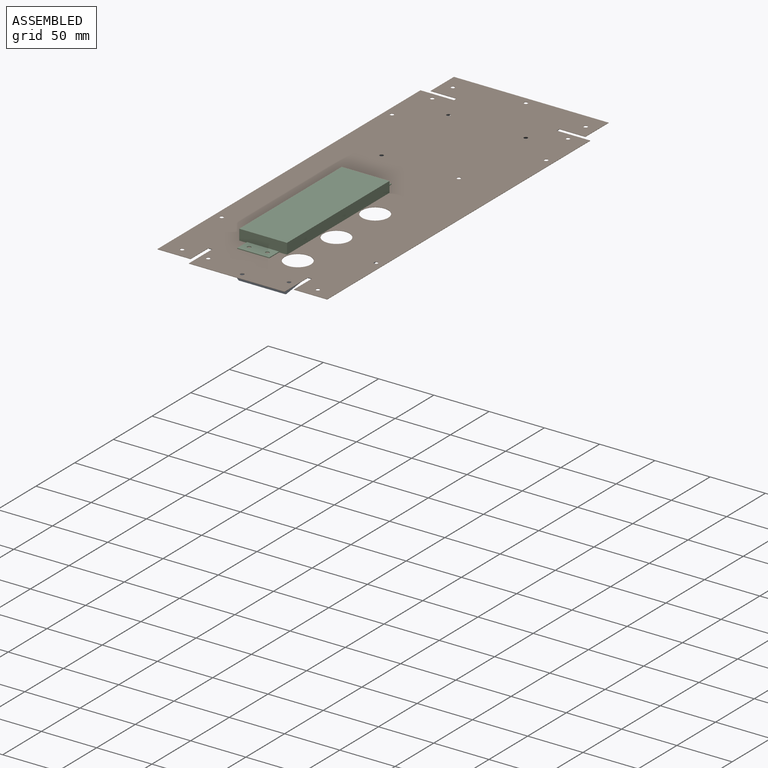
[diagram: assembled view]
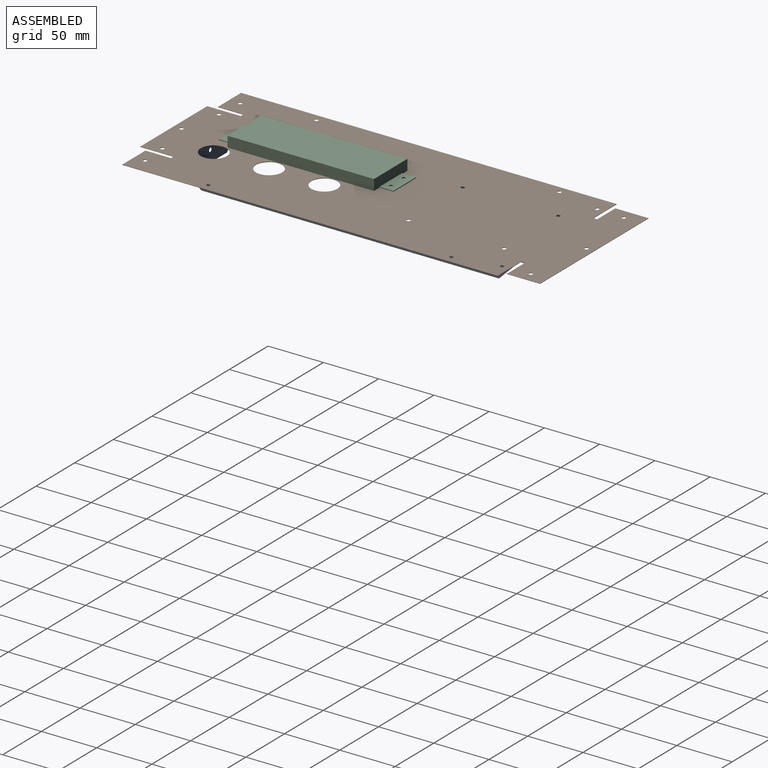
[diagram: assembled view, second angle]
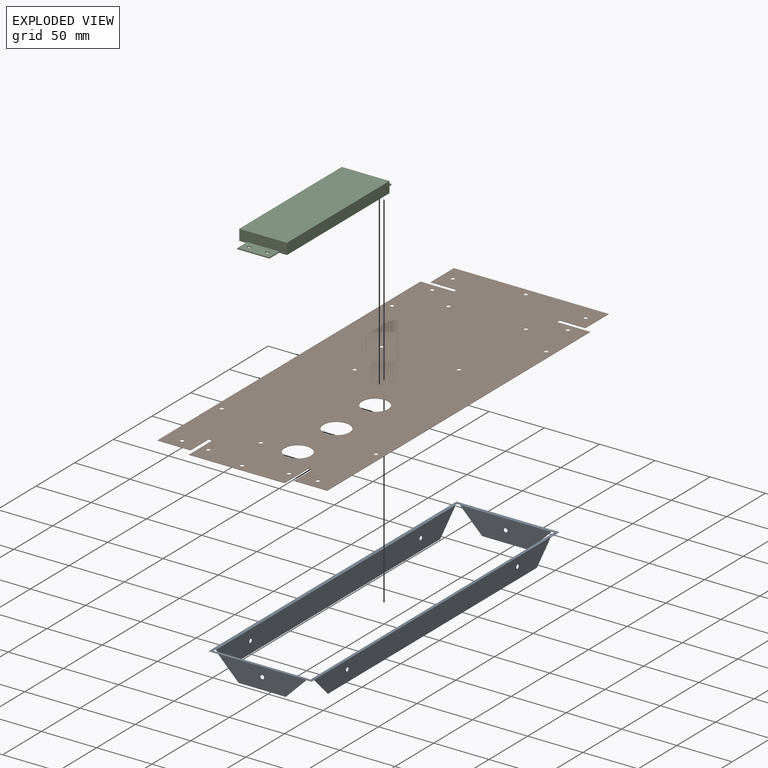
[diagram: exploded view]
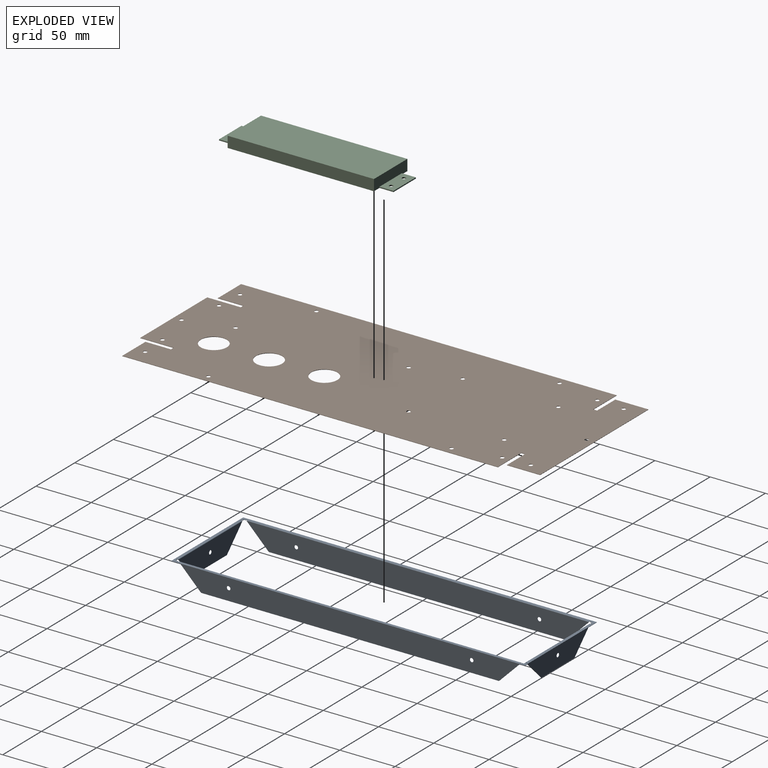
[diagram: exploded view, second angle]
FCSTD DOCUMENT  (FreeCAD 0.22R37100 (Git))
Label: composit_electric_shield
License: All rights reserved
LicenseURL: http://en.wikipedia.org/wiki/All_rights_reserved
objects: Part::FeaturePython×49, Path::FeaturePython×22, App::DocumentObjectGroup×20, Sketcher::SketchObject×7, App::FeaturePython×5, PartDesign::FeaturePython×4, PartDesign::Body×4, Part::Extrusion×4, Part::Mirroring×3, Part::Compound×3, PartDesign::Boolean×3, Part::Cylinder×3, Path::FeatureCompound×3, PartDesign::SubShapeBinder×2, App::Link×2, Part::Feature×2, Measure::MeasureDistance×2, Part::Part2DObjectPython×2, Part::Offset2D×1, Part::Face×1, +3 more types
note: 93 computed .brp shape members not serialized (recipe doc carries the construction recipe); baked Part::Feature solids carry a one-line shape summary decoded from their .brp
EXTERNAL_REF file=UET-VAF-060A67.FCStd obj=Body
EXTERNAL_REF file=../../horec/el/horec_el3/plate_cut2.FCStd obj=Extrude001

FEATURE [Sketcher::SketchObject] Sketch
  FullyConstrained = true
  sketch-geometry (5):
    g0: LineSegment StartX=-46.5 StartY=-160 StartZ=0 EndX=46.5 EndY=-160 EndZ=0
    g1: LineSegment StartX=46.5 StartY=-160 StartZ=0 EndX=46.5 EndY=160 EndZ=0
    g2: LineSegment StartX=46.5 StartY=160 StartZ=0 EndX=-46.5 EndY=160 EndZ=0
    g3: LineSegment StartX=-46.5 StartY=160 StartZ=0 EndX=-46.5 EndY=-160 EndZ=0
    g4: GeomPoint X=0 Y=0 Z=0
  constraints (12):
    c: Coincident(g0,g1)
    c: Coincident(g1,g2)
    c: Coincident(g2,g3)
    c: Coincident(g3,g0)
    c: Horizontal(g0)
    c: Horizontal(g2)
    c: Vertical(g1)
    c: Vertical(g3)
    c: Symmetric(g2,g0,g4)
    c: Coincident(g4,g-1)
    c: DistanceX(g0,g1) = 93  'width'
    c: DistanceY(g0,g1) = 320  'length'
FEATURE [Sketcher::SketchObject] Sketch001
  FullyConstrained = true
  Placement = pos=(0,0,0.4) rot=(0,0,1;0rad)
  expr: Constraints[10] = <<Sketch>>.Constraints.width / 2 + 3.4 mm
  expr: Constraints[11] = <<Sketch>>.Constraints.length / 2 + 0.1 mm
  sketch-geometry (5):
    g0: LineSegment StartX=-49.9 StartY=160.1 StartZ=0 EndX=-49.9 EndY=140.1 EndZ=0
    g1: LineSegment StartX=-49.9 StartY=140.1 StartZ=0 EndX=49.9 EndY=140.1 EndZ=0
    g2: LineSegment StartX=49.9 StartY=140.1 StartZ=0 EndX=49.9 EndY=160.1 EndZ=0
    g3: LineSegment StartX=49.9 StartY=160.1 StartZ=0 EndX=-49.9 EndY=160.1 EndZ=0
    g4: GeomPoint X=0 Y=150.1 Z=0
  constraints (13):
    c: Coincident(g0,g1)
    c: Coincident(g1,g2)
    c: Coincident(g2,g3)
    c: Coincident(g3,g0)
    c: Vertical(g0)
    c: Vertical(g2)
    c: Horizontal(g1)
    c: Horizontal(g3)
    c: Symmetric(g2,g0,g4)
    c: PointOnObject(g4,g-2)
    c: DistanceX(g2) = 49.9
    c: DistanceY(g2) = 160.1
    c: DistanceY(g2,g2) = 20
FEATURE [Sketcher::SketchObject] Sketch002
  FullyConstrained = true
  Placement = pos=(0,0,0.4) rot=(0,0,1;0rad)
  expr: Constraints[3] = <<Sketch>>.Constraints.width / 2 + 0.1 mm
  expr: Constraints[4] = -(<<Sketch>>.Constraints.length / 2 + 3 mm)
  sketch-geometry (2):
    g0: LineSegment StartX=46.6 StartY=-143 StartZ=0 EndX=46.6 EndY=-163 EndZ=0
    g1: LineSegment StartX=46.6 StartY=-163 StartZ=0 EndX=26.6 EndY=-163 EndZ=0
  constraints (7):
    c: Vertical(g0)
    c: Coincident(g0,g1)
    c: Horizontal(g1)
    c: DistanceX(g0) = 46.6
    c: DistanceY(g0) = -163
    c: DistanceX(g1,g1) = 20
    c: DistanceY(g0,g0) = 20
FEATURE [Part::Mirroring] Part__Mirroring  label="Sketch002 (Mirror #1)"
  Base = (0,0,0)
  Normal = (1,0,0)
  Source = -> Sketch002
FEATURE [PartDesign::SubShapeBinder] Binder
  BindCopyOnChange = 0
  BindMode = 0
  ClaimChildren = true
  Context = -> Body [Binder.]
  Fuse = false
  MakeFace = true
  OffsetFill = false
  OffsetIntersection = false
  OffsetJoinType = 0
  OffsetOpenResult = false
  PartialLoad = false
  Relative = false
  Support = -> [Sketch]
  _Version = 2
FEATURE [PartDesign::FeaturePython] BaseBend  # WARN: FeaturePython — macro-defined, semantics opaque (R4)
  BendSide = 0
  BendSketch = -> Binder
  MidPlane = false
  Reverse = false
  Suppressed = false
  length = 100
  radius = 0.1
  thickness = 0.3
FEATURE [PartDesign::FeaturePython] Bend  # WARN: FeaturePython — macro-defined, semantics opaque (R4)
  AutoMiter = false
  BaseFeature = -> BaseBend
  BendType = 0
  LengthList = [30]
  LengthSpec = 0
  ReliefFactor = 0.7
  Suppressed = false
  UseReliefFactor = false
  angle = 90
  baseObject = -> BaseBend [Edge4,Edge7,Edge12,Edge10]
  bendAList = [90]
  extend1 = 0
  extend2 = 0
  gap1 = 0
  gap2 = 0
  invert = false
  kfactor = 0.5
  length = 30
  maxExtendDist = 5
  minGap = 0.2
  minReliefGap = 1
  miterangle1 = 0
  miterangle2 = 0
  offset = 0
  radius = 0.1
  reliefType = 0
  reliefd = 1
  reliefw = 0.8
  sketchflip = false
  sketchinvert = false
  unfold = false
  expr: radius = BaseBend.radius
FEATURE [Part::FeaturePython] BaseBend001  # WARN: FeaturePython — macro-defined, semantics opaque (R4)
  BendSide = 0
  BendSketch = -> Sketch001
  MidPlane = false
  Reverse = false
  length = 30
  radius = 0.1
  thickness = 0.3
  expr: length = <<Bend>>.length
FEATURE [Part::FeaturePython] BaseBend002  # WARN: FeaturePython — macro-defined, semantics opaque (R4)
  BendSide = 1
  BendSketch = -> Sketch002
  MidPlane = false
  Reverse = false
  length = 30
  radius = 0.1
  thickness = 0.3
  expr: length = <<Bend>>.length
FEATURE [Part::FeaturePython] BaseBend003  # WARN: FeaturePython — macro-defined, semantics opaque (R4)
  BendSide = 0
  BendSketch = -> Part__Mirroring
  MidPlane = false
  Reverse = false
  length = 30
  radius = 0.1
  thickness = 0.3
  expr: length = <<Bend>>.length
FEATURE [PartDesign::Body] Body001
  Origin = -> Origin001
FEATURE [Part::Compound] Compound
  Links = -> [BaseBend001,BaseBend002,BaseBend003]
FEATURE [PartDesign::Boolean] Boolean
  BaseFeature = -> Bend
  Group = -> [Compound]
  Refine = true
  Suppressed = false
  Type = 0
  UsePlacement = true
FEATURE [Sketcher::SketchObject] Sketch003
  FullyConstrained = true
  Placement = pos=(46.5,160,0) rot=(0,0,1;0rad)
  expr: .Placement.Base.x = <<Sketch>>.Constraints.width / 2
  expr: .Placement.Base.y = <<Sketch>>.Constraints.length / 2
  sketch-geometry (4):
    g0: LineSegment StartX=0 StartY=0 StartZ=0 EndX=0.5 EndY=0 EndZ=0
    g1: LineSegment StartX=0.5 StartY=0 StartZ=0 EndX=0.5 EndY=-3.2 EndZ=0
    g2: LineSegment StartX=0.5 StartY=-3.2 StartZ=0 EndX=0 EndY=-3.2 EndZ=0
    g3: LineSegment StartX=0 StartY=-3.2 StartZ=0 EndX=0 EndY=0 EndZ=0
  constraints (11):
    c: Coincident(g0,g1)
    c: Coincident(g1,g2)
    c: Coincident(g2,g3)
    c: Coincident(g3,g0)
    c: Horizontal(g0)
    c: Horizontal(g2)
    c: Vertical(g1)
    c: Vertical(g3)
    c: Coincident(g0,g-1)
    c: DistanceY(g3,g3) = 3.2
    c: DistanceX(g0,g0) = 0.5
FEATURE [Sketcher::SketchObject] Sketch004
  FullyConstrained = true
  Placement = pos=(46.5,-160,0) rot=(0,0,1;0rad)
  expr: .Placement.Base.x = <<Sketch>>.Constraints.width / 2
  expr: .Placement.Base.y = -<<Sketch>>.Constraints.length / 2
  sketch-geometry (4):
    g0: LineSegment StartX=0 StartY=0 StartZ=0 EndX=-3.2 EndY=0 EndZ=0
    g1: LineSegment StartX=-3.2 StartY=0 StartZ=0 EndX=-3.2 EndY=-0.5 EndZ=0
    g2: LineSegment StartX=-3.2 StartY=-0.5 StartZ=0 EndX=0 EndY=-0.5 EndZ=0
    g3: LineSegment StartX=0 StartY=-0.5 StartZ=0 EndX=0 EndY=0 EndZ=0
  constraints (11):
    c: Coincident(g0,g1)
    c: Coincident(g1,g2)
    c: Coincident(g2,g3)
    c: Coincident(g3,g0)
    c: Horizontal(g0)
    c: Horizontal(g2)
    c: Vertical(g1)
    c: Vertical(g3)
    c: Coincident(g0,g-1)
    c: DistanceX(g1) = -3.2
    c: DistanceY(g1) = -0.5
FEATURE [Part::Extrusion] Extrude
  Base = -> Sketch003
  Dir = (0,0,1)
  DirMode = 2
  FaceMakerClass = Part::FaceMakerBullseye
  LengthFwd = 40
  LengthRev = 0
  Solid = true
  Symmetric = false
FEATURE [Part::Extrusion] Extrude001
  Base = -> Sketch004
  Dir = (0,0,1)
  DirMode = 2
  FaceMakerClass = Part::FaceMakerBullseye
  LengthFwd = 100
  LengthRev = 0
  Solid = true
  Symmetric = false
FEATURE [Part::Mirroring] Part__Mirroring001  label="Extrude (Mirror #2)"
  Base = (0,0,0)
  Normal = (1,0,0)
  Source = -> Extrude
FEATURE [Part::Mirroring] Part__Mirroring002  label="Extrude001 (Mirror #3)"
  Base = (0,0,0)
  Normal = (1,0,0)
  Source = -> Extrude001
FEATURE [Part::Cylinder] Cylinder
  Angle = 360
  AttacherType = Attacher::AttachEngine3D
  FirstAngle = 0
  Height = 10
  Radius = 1.7
  SecondAngle = 0
FEATURE [Part::FeaturePython] Placment  # WARN: FeaturePython — macro-defined, semantics opaque (R4)
  AttacherType = Attacher::AttachEngine3D
  ExposePlacement = true
  MarkerShape = 1
  MarkerSize = 10
  NumElements = 1
  Placement = pos=(46.5,150,15) rot=(0.57735,0.57735,0.57735;2.0944rad)
  Type = lattice2AttachablePlacement.AttachablePlacement
  isLattice = 1
  expr: .Placement.Base.x = <<Sketch>>.Constraints.width / 2
  expr: .Placement.Base.y = <<Sketch>>.Constraints.length / 2 - 10 mm
FEATURE [Part::FeaturePython] Placment001  # WARN: FeaturePython — macro-defined, semantics opaque (R4)
  AttacherType = Attacher::AttachEngine3D
  ExposePlacement = true
  MarkerShape = 1
  MarkerSize = 10
  NumElements = 1
  Placement = pos=(36.5,-160,15) rot=(1,0,0;1.5708rad)
  Type = lattice2AttachablePlacement.AttachablePlacement
  isLattice = 1
  expr: .Placement.Base.x = <<Sketch>>.Constraints.width / 2 - 10 mm
  expr: .Placement.Base.y = -<<Sketch>>.Constraints.length / 2
FEATURE [Part::FeaturePython] Join  # WARN: FeaturePython — macro-defined, semantics opaque (R4)
  ExposePlacement = false
  Interleave = false
  Links = -> [Placment,Placment001]
  MarkerShape = 1
  MarkerSize = 0
  NumElements = 2
  Type = lattice2JoinArrays.JoinArrays
  isLattice = 1
FEATURE [Part::FeaturePython] Mirror  label="Mirror of Join"  # WARN: FeaturePython — macro-defined, semantics opaque (R4)
  ExposePlacement = false
  FlipX = true
  FlipY = false
  FlipZ = false
  MarkerShape = 1
  MarkerSize = 0
  NumElements = 2
  Object = -> Join
  ObjectTraversal = 0
  Type = lattice2Mirror.LatticeMirror
  isLattice = 1
FEATURE [Part::FeaturePython] Join001  # WARN: FeaturePython — macro-defined, semantics opaque (R4)
  ExposePlacement = false
  Interleave = false
  Links = -> [Join,Mirror]
  MarkerShape = 1
  MarkerSize = 0
  NumElements = 4
  Type = lattice2JoinArrays.JoinArrays
  isLattice = 1
FEATURE [Part::FeaturePython] Populate  label="Populate Join001 with Cylinder"  # WARN: FeaturePython — macro-defined, semantics opaque (R4)
  Copying = 0
  ExposePlacement = false
  MarkerShape = 1
  MarkerSize = 0
  NumElements = 0
  Object = -> Cylinder
  OutputCompounding = 1
  PlacementsTo = -> Join001
  Referencing = 0
  Type = lattice2PopulateCopies.LatticePopulateCopies
  isLattice = 0
FEATURE [Part::Offset2D] Offset2D
  Fill = false
  Intersection = false
  Join = 0
  Mode = 1
  SelfIntersection = false
  Source = -> Sketch
  Value = -2.5
FEATURE [Part::Face] Face
  FaceMakerClass = Part::FaceMakerBullseye
  Sources = -> [Sketch,Offset2D]
FEATURE [PartDesign::SubShapeBinder] Binder001
  BindCopyOnChange = 0
  BindMode = 0
  ClaimChildren = true
  Context = -> Body002 [Binder001.]
  Fuse = false
  MakeFace = true
  OffsetFill = false
  OffsetIntersection = false
  OffsetJoinType = 0
  OffsetOpenResult = false
  PartialLoad = false
  Relative = false
  Support = -> [Face]
  _Version = 2
FEATURE [PartDesign::FeaturePython] BaseBend004  # WARN: FeaturePython — macro-defined, semantics opaque (R4)
  BendSide = 0
  BendSketch = -> Binder001
  MidPlane = false
  Reverse = true
  Suppressed = false
  length = 100
  radius = 0.1
  thickness = 0.3
FEATURE [PartDesign::FeaturePython] Bend001  # WARN: FeaturePython — macro-defined, semantics opaque (R4)
  AutoMiter = false
  BaseFeature = -> BaseBend004
  BendType = 0
  LengthList = [20]
  LengthSpec = 0
  ReliefFactor = 0.7
  Suppressed = false
  UseReliefFactor = false
  angle = 90
  baseObject = -> BaseBend004 [Edge21,Edge23,Edge18,Edge15]
  bendAList = [90]
  extend1 = 0
  extend2 = 0
  gap1 = 2.7
  gap2 = 2.7
  invert = true
  kfactor = 0.5
  length = 20
  maxExtendDist = 5
  minGap = 0.2
  minReliefGap = 1
  miterangle1 = 45
  miterangle2 = 45
  offset = 0
  radius = 0.1
  reliefType = 0
  reliefd = 1
  reliefw = 0.8
  sketchflip = false
  sketchinvert = false
  unfold = false
  expr: gap2 = gap1
  expr: radius = BaseBend004.radius
FEATURE [Part::FeaturePython] PolarArray  # WARN: FeaturePython — macro-defined, semantics opaque (R4)
  Alignment = 0
  AttacherType = Attacher::AttachEngine3D
  CellStart = A1
  Count = 2
  DistributionLaw = 0
  EndInclusive = false
  ExposePlacement = false
  FlipX = false
  FlipZ = false
  GeneratorMode = 0
  MarkerShape = 1
  MarkerSize = 0
  NumElements = 2
  OrientMode = 2
  Placement = pos=(20,-70,0) rot=(0,0,1;1.45749rad)
  Radius = 72.9679
  Reverse = false
  SpanEnd = 360
  SpanStart = 0
  Step = 180
  Type = lattice2PolarArray2.PolarArray
  UseArcRadius = false
  UseArcRange = 0
  VSGVersion = 1
  Values = 0.0 | 180.0
  ValuesSource = 2
  isLattice = 1
  expr: .Placement.Rotation.Angle = atan2(145; 16.5)
  expr: Radius = hypot(16.5; 145) / 2
FEATURE [Part::FeaturePython] Populate001  label="Populate PolarArray with Cylinder"  # WARN: FeaturePython — macro-defined, semantics opaque (R4)
  Copying = 0
  ExposePlacement = false
  MarkerShape = 1
  MarkerSize = 0
  NumElements = 0
  Object = -> Cylinder
  OutputCompounding = 1
  PlacementsTo = -> PolarArray
  Referencing = 0
  Type = lattice2PopulateCopies.LatticePopulateCopies
  isLattice = 0
FEATURE [Part::FeaturePython] LinearArray  # WARN: FeaturePython — macro-defined, semantics opaque (R4)
  Alignment = 0
  CellStart = A1
  Count = 3
  Dir = (1,0,0)
  DirIsDriven = true
  DistributionLaw = 0
  DrivenProperty = 1
  EndInclusive = true
  ExposePlacement = false
  GeneratorMode = 0
  MarkerShape = 1
  MarkerSize = 0
  NumElements = 3
  OrientMode = 1
  Placement = pos=(-20,-140,0) rot=(0,0,1;1.5708rad)
  Point = (0,0,0)
  PointIsDriven = true
  Reverse = false
  SpanEnd = 100
  SpanStart = 0
  Step = 50
  Type = lattice2LinearArray.LinearArray
  VSGVersion = 1
  Values = 0.0 | 50.0 | 100.0
  ValuesSource = 2
  isLattice = 1
FEATURE [Part::Cylinder] Cylinder001
  Angle = 360
  AttacherType = Attacher::AttachEngine3D
  FirstAngle = 0
  Height = 10
  Radius = 11.85
  SecondAngle = 0
FEATURE [Part::FeaturePython] Populate002  label="Populate LinearArray with Cylinder001"  # WARN: FeaturePython — macro-defined, semantics opaque (R4)
  Copying = 0
  ExposePlacement = false
  MarkerShape = 1
  MarkerSize = 0
  NumElements = 0
  Object = -> Cylinder001
  OutputCompounding = 1
  PlacementsTo = -> LinearArray
  Referencing = 0
  Type = lattice2PopulateCopies.LatticePopulateCopies
  isLattice = 0
FEATURE [Part::FeaturePython] LinearArray001  # WARN: FeaturePython — macro-defined, semantics opaque (R4)
  Alignment = 0
  CellStart = A1
  Count = 1
  Dir = (1,0,0)
  DirIsDriven = true
  DistributionLaw = 0
  DrivenProperty = 1
  EndInclusive = true
  ExposePlacement = false
  GeneratorMode = 0
  MarkerShape = 1
  MarkerSize = 10
  NumElements = 1
  OrientMode = 1
  Point = (0,0,0)
  PointIsDriven = true
  Reverse = false
  SpanEnd = 100
  SpanStart = 0
  Step = 100
  Type = lattice2LinearArray.LinearArray
  VSGVersion = 1
  Values = 0.0
  ValuesSource = 2
  isLattice = 1
  expr: .Placement.Base.x = Count == 1 ? 0 : -SpanEnd / 2
FEATURE [Part::FeaturePython] LinearArray002  # WARN: FeaturePython — macro-defined, semantics opaque (R4)
  Alignment = 0
  CellStart = A1
  Count = 2
  Dir = (1,0,0)
  DirIsDriven = true
  DistributionLaw = 0
  DrivenProperty = 1
  EndInclusive = true
  ExposePlacement = false
  GeneratorMode = 0
  MarkerShape = 1
  MarkerSize = 0
  NumElements = 2
  OrientMode = 1
  Placement = pos=(-110,0,0) rot=(0,0,1;0rad)
  Point = (0,0,0)
  PointIsDriven = true
  Reverse = false
  SpanEnd = 220
  SpanStart = 0
  Step = 220
  Type = lattice2LinearArray.LinearArray
  VSGVersion = 1
  Values = 0.0 | 220.0
  ValuesSource = 2
  isLattice = 1
  expr: .Placement.Base.x = Count == 1 ? 0 : -SpanEnd / 2
  expr: SpanEnd = <<Sketch>>.Constraints.length - 100 mm
FEATURE [Part::FeaturePython] Placment002  # WARN: FeaturePython — macro-defined, semantics opaque (R4)
  AttacherType = Attacher::AttachEngine3D
  ExposePlacement = true
  MarkerShape = 1
  MarkerSize = 20
  NumElements = 1
  Placement = pos=(43,0,0) rot=(0.57735,0.57735,0.57735;2.0944rad)
  Type = lattice2AttachablePlacement.AttachablePlacement
  isLattice = 1
  expr: .Placement.Base.x = <<Sketch>>.Constraints.width / 2 - 3.5 mm
FEATURE [Part::FeaturePython] Mirror001  label="Mirror001 of Placment002"  # WARN: FeaturePython — macro-defined, semantics opaque (R4)
  ExposePlacement = false
  FlipX = true
  FlipY = false
  FlipZ = false
  MarkerShape = 1
  MarkerSize = 20
  NumElements = 1
  Object = -> Placment002
  ObjectTraversal = 0
  Type = lattice2Mirror.LatticeMirror
  isLattice = 1
FEATURE [Part::FeaturePython] Join002  # WARN: FeaturePython — macro-defined, semantics opaque (R4)
  ExposePlacement = false
  Interleave = false
  Links = -> [Placment002,Mirror001]
  MarkerShape = 1
  MarkerSize = 0
  NumElements = 2
  Type = lattice2JoinArrays.JoinArrays
  isLattice = 1
FEATURE [Part::FeaturePython] Populate003  label="Populate Join002 with LinearArray002"  # WARN: FeaturePython — macro-defined, semantics opaque (R4)
  Copying = 0
  ExposePlacement = false
  MarkerShape = 1
  MarkerSize = 0
  NumElements = 4
  Object = -> LinearArray002
  OutputCompounding = 0
  PlacementsTo = -> Join002
  Referencing = 0
  Type = lattice2PopulateCopies.LatticePopulateCopies
  isLattice = 1
FEATURE [Part::FeaturePython] Placment003  # WARN: FeaturePython — macro-defined, semantics opaque (R4)
  AttacherType = Attacher::AttachEngine3D
  ExposePlacement = true
  MarkerShape = 1
  MarkerSize = 50
  NumElements = 1
  Placement = pos=(0,156.5,0) rot=(-1,0,0;1.5708rad)
  Type = lattice2AttachablePlacement.AttachablePlacement
  isLattice = 1
  expr: .Placement.Base.y = <<Sketch>>.Constraints.length / 2 - 3.5 mm
FEATURE [Part::FeaturePython] Mirror002  label="Mirror002 of Placment003"  # WARN: FeaturePython — macro-defined, semantics opaque (R4)
  ExposePlacement = false
  FlipX = false
  FlipY = true
  FlipZ = false
  MarkerShape = 1
  MarkerSize = 50
  NumElements = 1
  Object = -> Placment003
  ObjectTraversal = 0
  Type = lattice2Mirror.LatticeMirror
  isLattice = 1
FEATURE [Part::FeaturePython] Join003  # WARN: FeaturePython — macro-defined, semantics opaque (R4)
  ExposePlacement = false
  Interleave = false
  Links = -> [Mirror002,Placment003]
  MarkerShape = 1
  MarkerSize = 0
  NumElements = 2
  Type = lattice2JoinArrays.JoinArrays
  isLattice = 1
FEATURE [Part::FeaturePython] Populate004  label="Populate Join003 with LinearArray001"  # WARN: FeaturePython — macro-defined, semantics opaque (R4)
  Copying = 0
  ExposePlacement = false
  MarkerShape = 1
  MarkerSize = 0
  NumElements = 2
  Object = -> LinearArray001
  OutputCompounding = 0
  PlacementsTo = -> Join003
  Referencing = 0
  Type = lattice2PopulateCopies.LatticePopulateCopies
  isLattice = 1
FEATURE [Part::FeaturePython] Join004  # WARN: FeaturePython — macro-defined, semantics opaque (R4)
  ExposePlacement = false
  Interleave = false
  Links = -> [Populate003,Populate004]
  MarkerShape = 1
  MarkerSize = 0
  NumElements = 6
  Type = lattice2JoinArrays.JoinArrays
  isLattice = 1
FEATURE [Part::FeaturePython] Populate005  label="Populate Join004 with Cylinder"  # WARN: FeaturePython — macro-defined, semantics opaque (R4)
  Copying = 0
  ExposePlacement = false
  MarkerShape = 1
  MarkerSize = 0
  NumElements = 0
  Object = -> Cylinder
  OutputCompounding = 1
  PlacementsTo = -> Join004
  Referencing = 0
  Type = lattice2PopulateCopies.LatticePopulateCopies
  isLattice = 0
FEATURE [Part::FeaturePython] Placment004  # WARN: FeaturePython — macro-defined, semantics opaque (R4)
  AttacherType = Attacher::AttachEngine3D
  ExposePlacement = true
  MarkerShape = 1
  MarkerSize = 50
  NumElements = 1
  Placement = pos=(0,0,-10) rot=(0,0,1;0rad)
  Type = lattice2AttachablePlacement.AttachablePlacement
  isLattice = 1
FEATURE [Part::FeaturePython] Placment005  # WARN: FeaturePython — macro-defined, semantics opaque (R4)
  AttacherType = Attacher::AttachEngine3D
  ExposePlacement = true
  MarkerShape = 1
  MarkerSize = 50
  NumElements = 1
  Placement = pos=(0,0,23.4) rot=(0,0,1;0rad)
  Type = lattice2AttachablePlacement.AttachablePlacement
  isLattice = 1
  expr: .Placement.Base.z = <<Bend>>.length + <<Placment004>>.Placement.Base.z + 3.4 mm
FEATURE [Part::FeaturePython] Populate006  label="Populate Placment004 with Populate Join004 with Cylinder"  # WARN: FeaturePython — macro-defined, semantics opaque (R4)
  Copying = 0
  ExposePlacement = false
  MarkerShape = 1
  MarkerSize = 0
  NumElements = 0
  Object = -> Populate005
  OutputCompounding = 2
  PlacementsTo = -> Placment004
  Referencing = 0
  Type = lattice2PopulateCopies.LatticePopulateCopies
  isLattice = 0
FEATURE [Part::FeaturePython] Populate007  label="Populate Placment005 with Populate Join004 with Cylinder"  # WARN: FeaturePython — macro-defined, semantics opaque (R4)
  Copying = 0
  ExposePlacement = false
  MarkerShape = 1
  MarkerSize = 0
  NumElements = 0
  Object = -> Populate005
  OutputCompounding = 2
  PlacementsTo = -> Placment005
  Referencing = 0
  Type = lattice2PopulateCopies.LatticePopulateCopies
  isLattice = 0
FEATURE [Part::Compound] Compound002
  Links = -> [Populate006]
FEATURE [PartDesign::Boolean] Boolean002
  BaseFeature = -> Bend001
  Group = -> [Compound002]
  Suppressed = false
  Type = 1
  UsePlacement = true
FEATURE [PartDesign::Body] Body002  label="composit_electric_shield_fix"
  Group = -> [Binder001,BaseBend004,Bend001,Boolean002]
  Origin = -> Origin002
  Tip = -> Boolean002
FEATURE [PartDesign::CoordinateSystem] Local_CS  label="composit_electric_shield_LCS"
  AttacherType = Attacher::AttachEngine3D
  AttachmentOffset = pos=(0,0,33.4) rot=(0,0,1;0rad)
  AttachmentSupport = -> [XY_Plane]
  MapMode = 5
  Placement = pos=(0,0,33.4) rot=(0,0,1;0rad)
FEATURE [Part::Extrusion] Extrude002  label="electric_shield_cut"
  Base = -> Offset2D
  Dir = (0,0,1)
  DirMode = 2
  FaceMakerClass = Part::FaceMakerBullseye
  LengthFwd = 10
  LengthRev = 0
  Reversed = true
  Solid = true
  Symmetric = false
FEATURE [App::Link] Link  label="Body"
  LinkPlacement = pos=(-14,-70,0) rot=(0,0,1;0rad)
  LinkedObject = -> <external UET-VAF-060A67.FCStd>#Body
  Placement = pos=(-14,-70,0) rot=(0,0,1;0rad)
FEATURE [Part::Feature] Pcb_32d
  shape: bbox 72.05 x 95.4 x 1.6 mm, 128 faces (baked)
FEATURE [Sketcher::SketchObject] Sketch005
  ExternalGeometry = -> [Pcb_32d]
  FullyConstrained = true
  sketch-geometry (17):
    g0: Circle CenterX=-35.5099 CenterY=145.111 CenterZ=0 NormalX=0 NormalY=0 NormalZ=1 AngleXU=0 Radius=1.6
    g1: Circle CenterX=31.3701 CenterY=144.971 CenterZ=0 NormalX=0 NormalY=0 NormalZ=1 AngleXU=0 Radius=1.6
    g2: Circle CenterX=-35.2999 CenterY=55.7712 CenterZ=0 NormalX=0 NormalY=0 NormalZ=1 AngleXU=0 Radius=1.6
    g3: Circle CenterX=31.3001 CenterY=65.8812 CenterZ=0 NormalX=0 NormalY=0 NormalZ=1 AngleXU=0 Radius=1.6
    g4: LineSegment StartX=-35.2999 StartY=55.7712 StartZ=0 EndX=31.3001 EndY=65.8812 EndZ=0
    g5: LineSegment StartX=31.3001 StartY=65.8812 StartZ=0 EndX=31.3701 EndY=144.971 EndZ=0
    g6: LineSegment StartX=31.3701 StartY=144.971 StartZ=0 EndX=-35.5099 EndY=145.111 EndZ=0
    g7: LineSegment StartX=-35.5099 StartY=145.111 StartZ=0 EndX=-35.2999 EndY=55.7712 EndZ=0
    g8: LineSegment StartX=-35.2999 StartY=55.7712 StartZ=0 EndX=31.3701 EndY=144.971 EndZ=0
    g9: LineSegment StartX=31.3001 StartY=65.8812 StartZ=0 EndX=-35.5099 EndY=145.111 EndZ=0
    g10: LineSegment StartX=92.53 StartY=-64.41 StartZ=0 EndX=159.34 EndY=-143.64 EndZ=0
    g11: LineSegment StartX=92.74 StartY=-153.75 StartZ=0 EndX=159.41 EndY=-64.55 EndZ=0
    g12: LineSegment StartX=92.53 StartY=-64.41 StartZ=0 EndX=92.74 EndY=-153.75 EndZ=0
    g13: LineSegment StartX=92.74 StartY=-153.75 StartZ=0 EndX=159.34 EndY=-143.64 EndZ=0
    g14: LineSegment StartX=159.34 StartY=-143.64 StartZ=0 EndX=159.41 EndY=-64.55 EndZ=0
    g15: LineSegment StartX=159.41 StartY=-64.55 StartZ=0 EndX=92.53 EndY=-64.41 EndZ=0
    g16: GeomPoint X=0 Y=103 Z=0
  constraints (38):
    c: Coincident(g4,g2)
    c: Coincident(g4,g3)
    c: Coincident(g4,g5)
    c: Coincident(g5,g1)
    c: Coincident(g5,g6)
    c: Coincident(g6,g0)
    c: Coincident(g6,g7)
    c: Coincident(g7,g4)
    c: Coincident(g8,g2)
    c: Coincident(g8,g1)
    c: Coincident(g9,g3)
    c: Coincident(g9,g0)
    c: Coincident(g10,g-3)
    c: Coincident(g10,g-5)
    c: Coincident(g11,g-6)
    c: Coincident(g11,g-4)
    c: Coincident(g10,g12)
    c: Coincident(g12,g11)
    c: Coincident(g12,g13)
    c: Coincident(g13,g10)
    c: Coincident(g13,g14)
    c: Coincident(g14,g11)
    c: Coincident(g14,g15)
    c: Coincident(g15,g12)
    c: Equal(g14,g5)
    c: Equal(g15,g6)
    c: Equal(g12,g7)
    c: Equal(g13,g4)
    c: Equal(g10,g9)
    c: Equal(g1,g0)
    c: Equal(g1,g3)
    c: Equal(g1,g2)
    c: Diameter(g1) = 3.2
    c: Parallel(g12,g7)
    c: PointOnObject(g16,g9)
    c: PointOnObject(g16,g8)
    c: PointOnObject(g16,g-2)
    c: DistanceY(g16) = 103
FEATURE [Part::Extrusion] Extrude003
  Base = -> Sketch005
  Dir = (0,0,1)
  DirMode = 2
  FaceMakerClass = Part::FaceMakerBullseye
  LengthFwd = 10
  LengthRev = 0
  Solid = true
  Symmetric = false
FEATURE [App::FeaturePython] SetupSheet  # Path/CAM operation (typed FeaturePython)
  ClearanceHeightExpression = OpStockZMax+SetupSheet.ClearanceHeightOffset
  ClearanceHeightOffset = 5
  CoolantMode = 0
  CoolantModes = None | Flood | Mist
  FinalDepthExpression = -0.1 mm
  HorizRapid = 0
  ProfileDirection = 1
  ProfileSide = 0
  ProfileUseComp = true
  ProfileprocessCircles = true
  ProfileprocessHoles = true
  ProfileprocessPerimeter = true
  SafeHeightExpression = OpStockZMax+SetupSheet.SafeHeightOffset
  SafeHeightOffset = 3
  StartDepthExpression = 3 mm
  StepDownExpression = 4 mm
  VertRapid = 0
FEATURE [Part::FeaturePython] ToolBit  label="3.175mm Endmill"  # Path/CAM toolbit (typed FeaturePython)
  BitPropertyNames = Chipload | CuttingEdgeHeight | Diameter | Flutes | Length | Material | ShankDiameter | SpindleDirection
  BitShape = <path>
  Chipload = 0
  CuttingEdgeHeight = 30
  Diameter = 3.175
  Flutes = 0
  Length = 10
  Material = 0
  ShankDiameter = 3
  ShapeName = endmill
  SpindleDirection = 0
FEATURE [Path::FeaturePython] __175mm_Endmill  label="3.175mm Endmill001"  # Path/CAM operation (typed FeaturePython)
  HorizFeed = 33.3333
  HorizRapid = 0
  SpindleDir = 0
  SpindleSpeed = 18000
  Tool = -> ToolBit
  ToolNumber = 1
  VertFeed = 8.33333
  VertRapid = 0
  expr: HorizRapid = SetupSheet.HorizRapid
  expr: VertRapid = SetupSheet.VertRapid
FEATURE [App::DocumentObjectGroup] Tools
  Group = -> [__175mm_Endmill]
FEATURE [App::FeaturePython] SetupSheet001  # Path/CAM operation (typed FeaturePython)
  ClearanceHeightExpression = OpStockZMax+SetupSheet001.ClearanceHeightOffset
  ClearanceHeightOffset = 5
  CoolantMode = 0
  CoolantModes = None | Flood | Mist
  DeburrExtraDepth = 0
  DeburrWidth = 2.7
  FinalDepthExpression = 0.6 mm
  HorizRapid = 0
  ProfileDirection = 1
  ProfileprocessCircles = true
  ProfileprocessHoles = true
  ProfileprocessPerimeter = true
  SafeHeightExpression = OpStockZMax+SetupSheet001.SafeHeightOffset
  SafeHeightOffset = 3
  StartDepthExpression = 3 mm
  StepDownExpression = OpToolDiameter
  VertRapid = 0
FEATURE [Part::FeaturePython] ToolBit001  label="NZV6109015"  # Path/CAM toolbit (typed FeaturePython)
  BitPropertyNames = Chipload | CuttingEdgeAngle | CuttingEdgeHeight | Diameter | Flutes | Length | Material | ShankDiameter | TipDiameter
  BitShape = <path>
  Chipload = 0
  CuttingEdgeAngle = 90
  CuttingEdgeHeight = 4
  Diameter = 10
  Flutes = 0
  Length = 50
  Material = 0
  ShankDiameter = 6
  ShapeName = chamfer
  TipDiameter = 1
FEATURE [Path::FeaturePython] NZV6109015  label="NZV6109016"  # Path/CAM operation (typed FeaturePython)
  HorizFeed = 51.6667
  HorizRapid = 0
  SpindleDir = 0
  SpindleSpeed = 18000
  Tool = -> ToolBit001
  ToolNumber = 2
  VertFeed = 16.6667
  VertRapid = 0
  expr: HorizRapid = SetupSheet001.HorizRapid
  expr: VertRapid = SetupSheet001.VertRapid
FEATURE [App::DocumentObjectGroup] Tools001
  Group = -> [NZV6109015]
FEATURE [Part::Cylinder] Cylinder002
  Angle = 360
  AttacherType = Attacher::AttachEngine3D
  FirstAngle = 0
  Height = 20
  Radius = 0.2
  SecondAngle = 0
FEATURE [Part::FeaturePython] Dart  # WARN: FeaturePython — macro-defined, semantics opaque (R4)
  ExposePlacement = true
  FlipZ = false
  Invert = false
  MarkerShape = 1
  MarkerSize = 2
  NumElements = 1
  Placement = pos=(-61.3985,-173.198,-1.89e-14) rot=(0,0,1;0rad)
  PlacementChoice = 0
  Type = lattice2Placement.LatticePlacement
  isLattice = 1
FEATURE [Part::FeaturePython] Dart001  # WARN: FeaturePython — macro-defined, semantics opaque (R4)
  ExposePlacement = true
  FlipZ = false
  Invert = false
  MarkerShape = 1
  MarkerSize = 5
  NumElements = 1
  Placement = pos=(61.3985,-173.198,-3.9e-15) rot=(0,0,1;0rad)
  PlacementChoice = 0
  Type = lattice2Placement.LatticePlacement
  isLattice = 1
FEATURE [Part::FeaturePython] Dart002  # WARN: FeaturePython — macro-defined, semantics opaque (R4)
  ExposePlacement = true
  FlipZ = false
  Invert = false
  MarkerShape = 1
  MarkerSize = 5
  NumElements = 1
  Placement = pos=(60.0985,174.898,1.02e-14) rot=(0,0,1;0rad)
  PlacementChoice = 0
  Type = lattice2Placement.LatticePlacement
  isLattice = 1
FEATURE [Part::FeaturePython] Dart003  # WARN: FeaturePython — macro-defined, semantics opaque (R4)
  ExposePlacement = true
  FlipZ = false
  Invert = false
  MarkerShape = 1
  MarkerSize = 20
  NumElements = 1
  Placement = pos=(-60.0985,174.898,-1.17e-14) rot=(0,0,1;0rad)
  PlacementChoice = 0
  Type = lattice2Placement.LatticePlacement
  isLattice = 1
FEATURE [Part::FeaturePython] ShotArray  # WARN: FeaturePython — macro-defined, semantics opaque (R4)
  ExposePlacement = false
  Interleave = false
  Links = -> [Dart,Dart001,Dart002,Dart003]
  MarkerShape = 1
  MarkerSize = 20
  NumElements = 4
  Placement = pos=(0,0,-1) rot=(0,0,1;0rad)
  Type = lattice2JoinArrays.JoinArrays
  isLattice = 1
FEATURE [Part::FeaturePython] Populate008  label="Populate ShotArray with Cylinder002"  # WARN: FeaturePython — macro-defined, semantics opaque (R4)
  Copying = 0
  ExposePlacement = false
  MarkerShape = 1
  MarkerSize = 0
  NumElements = 0
  Object = -> Cylinder002
  OutputCompounding = 1
  Placement = pos=(190.298,76.7985,-2.8e-14) rot=(0,0,-1;1.5708rad)
  PlacementsTo = -> ShotArray
  Referencing = 0
  Type = lattice2PopulateCopies.LatticePopulateCopies
  isLattice = 0
  expr: Placement = <<Model-electric_shield_Body>>.Placement
FEATURE [Part::Box] Box  label="Cube"
  AttacherType = Attacher::AttachEngine3D
  Height = 10
  Length = 10
  Width = 10
FEATURE [App::FeaturePython] SetupSheet002  # Path/CAM operation (typed FeaturePython)
  ClearanceHeightExpression = OpStockZMax+SetupSheet002.ClearanceHeightOffset
  ClearanceHeightOffset = 5
  CoolantMode = 0
  CoolantModes = None | Flood | Mist
  FinalDepthExpression = -0.1 mm
  HorizRapid = 0
  ProfileDirection = 1
  ProfileSide = 0
  ProfileUseComp = true
  ProfileprocessCircles = true
  ProfileprocessHoles = true
  ProfileprocessPerimeter = true
  SafeHeightExpression = OpStockZMax+SetupSheet002.SafeHeightOffset
  SafeHeightOffset = 3
  StartDepthExpression = 3 mm
  StepDownExpression = 4 mm
  VertRapid = 0
FEATURE [Part::FeaturePython] Clone001  label="Model-Cube"  # Draft clone (typed FeaturePython)
  AttacherType = Attacher::AttachEngine3D
  Fuse = false
  Objects = -> [Box]
  PathResource = Model
  Scale = (1,1,1)
FEATURE [App::DocumentObjectGroup] Model002
  Group = -> [Clone001]
FEATURE [Part::FeaturePython] ToolBit002  label="3.175mm Endmill003"  # Path/CAM toolbit (typed FeaturePython)
  BitPropertyNames = Chipload | CuttingEdgeHeight | Diameter | Flutes | Length | Material | ShankDiameter | SpindleDirection
  BitShape = <path>
  Chipload = 0
  CuttingEdgeHeight = 30
  Diameter = 3.175
  Flutes = 0
  Length = 10
  Material = 0
  ShankDiameter = 3
  ShapeName = endmill
  SpindleDirection = 0
FEATURE [Path::FeaturePython] __175mm_Endmill001  label="3.175mm Endmill002"  # Path/CAM operation (typed FeaturePython)
  HorizFeed = 33.3333
  HorizRapid = 0
  SpindleDir = 0
  SpindleSpeed = 18000
  Tool = -> ToolBit002
  ToolNumber = 1
  VertFeed = 8.33333
  VertRapid = 0
  expr: HorizRapid = SetupSheet002.HorizRapid
  expr: VertRapid = SetupSheet002.VertRapid
FEATURE [App::DocumentObjectGroup] Tools002
  Group = -> [__175mm_Endmill001]
FEATURE [Part::FeaturePython] Stock002  # WARN: FeaturePython — macro-defined, semantics opaque (R4)
  Base = -> Model002
  ExtXneg = 1
  ExtXpos = 1
  ExtYneg = 1
  ExtYpos = 1
  ExtZneg = 0
  ExtZpos = 1
  StockType = FromBase
FEATURE [Path::FeaturePython] Custom  # Path/CAM operation (typed FeaturePython)
  Active = true
  CoolantMode = 0
  CycleTime = Cycletime Error
  OpStockZMax = 11
  OpStockZMin = 0
  OpToolDiameter = 3.175
  Source = 0
  StartDepth = 11
  ToolController = -> __175mm_Endmill001
FEATURE [Path::FeaturePython] Custom001  # Path/CAM operation (typed FeaturePython)
  Active = true
  CoolantMode = 0
  CycleTime = Cycletime Error
  OpStockZMax = 11
  OpStockZMin = 0
  OpToolDiameter = 3.175
  Source = 0
  StartDepth = 11
  ToolController = -> __175mm_Endmill001
FEATURE [App::FeaturePython] SetupSheet003  # Path/CAM operation (typed FeaturePython)
  ClearanceHeightExpression = OpStockZMax+SetupSheet002.ClearanceHeightOffset
  ClearanceHeightOffset = 5
  CoolantMode = 0
  CoolantModes = None | Flood | Mist
  FinalDepthExpression = -0.1 mm
  HorizRapid = 0
  ProfileDirection = 1
  ProfileSide = 0
  ProfileUseComp = true
  ProfileprocessCircles = true
  ProfileprocessHoles = true
  ProfileprocessPerimeter = true
  SafeHeightExpression = OpStockZMax+SetupSheet002.SafeHeightOffset
  SafeHeightOffset = 3
  StartDepthExpression = 3 mm
  StepDownExpression = 4 mm
  VertRapid = 0
FEATURE [Part::FeaturePython] Clone002  label="Model-Cube001"  # Draft clone (typed FeaturePython)
  AttacherType = Attacher::AttachEngine3D
  Fuse = false
  Objects = -> [Box]
  PathResource = Model
  Scale = (1,1,1)
FEATURE [Part::FeaturePython] ToolBit003  label="3.175mm Endmill004"  # Path/CAM toolbit (typed FeaturePython)
  BitPropertyNames = Chipload | CuttingEdgeHeight | Diameter | Flutes | Length | Material | ShankDiameter | SpindleDirection
  BitShape = <path>
  Chipload = 0
  CuttingEdgeHeight = 30
  Diameter = 3.175
  Flutes = 0
  Length = 10
  Material = 0
  ShankDiameter = 3
  ShapeName = endmill
  SpindleDirection = 0
FEATURE [App::DocumentObjectGroup] Model003
  Group = -> [Clone002]
FEATURE [Part::FeaturePython] Stock003  # WARN: FeaturePython — macro-defined, semantics opaque (R4)
  Base = -> Model003
  ExtXneg = 1
  ExtXpos = 1
  ExtYneg = 1
  ExtYpos = 1
  ExtZneg = 0
  ExtZpos = 1
  StockType = FromBase
FEATURE [Path::FeaturePython] __175mm_Endmill002  label="3.175mm Endmill005"  # Path/CAM operation (typed FeaturePython)
  HorizFeed = 33.3333
  HorizRapid = 0
  SpindleDir = 0
  SpindleSpeed = 18000
  Tool = -> ToolBit003
  ToolNumber = 1
  VertFeed = 8.33333
  VertRapid = 0
  expr: HorizRapid = SetupSheet003.HorizRapid
  expr: VertRapid = SetupSheet003.VertRapid
FEATURE [Path::FeaturePython] Custom002  # Path/CAM operation (typed FeaturePython)
  Active = true
  CoolantMode = 0
  CycleTime = Cycletime Error
  OpStockZMax = 11
  OpStockZMin = 0
  OpToolDiameter = 3.175
  Source = 0
  StartDepth = 11
  ToolController = -> __175mm_Endmill002
FEATURE [Path::FeaturePython] Custom003  # Path/CAM operation (typed FeaturePython)
  Active = true
  CoolantMode = 0
  CycleTime = Cycletime Error
  OpStockZMax = 11
  OpStockZMin = 0
  OpToolDiameter = 3.175
  Source = 0
  StartDepth = 11
  ToolController = -> __175mm_Endmill002
FEATURE [App::DocumentObjectGroup] Tools003
  Group = -> [__175mm_Endmill002]
FEATURE [App::FeaturePython] SetupSheet004  # Path/CAM operation (typed FeaturePython)
  ClearanceHeightExpression = OpStockZMax+SetupSheet002.ClearanceHeightOffset
  ClearanceHeightOffset = 5
  CoolantMode = 0
  CoolantModes = None | Flood | Mist
  FinalDepthExpression = -0.1 mm
  HorizRapid = 0
  ProfileDirection = 1
  ProfileSide = 0
  ProfileUseComp = true
  ProfileprocessCircles = true
  ProfileprocessHoles = true
  ProfileprocessPerimeter = true
  SafeHeightExpression = OpStockZMax+SetupSheet002.SafeHeightOffset
  SafeHeightOffset = 3
  StartDepthExpression = 3 mm
  StepDownExpression = 4 mm
  VertRapid = 0
FEATURE [Part::FeaturePython] Clone003  label="Model-Cube002"  # Draft clone (typed FeaturePython)
  AttacherType = Attacher::AttachEngine3D
  Fuse = false
  Objects = -> [Box]
  PathResource = Model
  Scale = (1,1,1)
FEATURE [Part::FeaturePython] ToolBit004  label="3.175mm Endmill006"  # Path/CAM toolbit (typed FeaturePython)
  BitPropertyNames = Chipload | CuttingEdgeHeight | Diameter | Flutes | Length | Material | ShankDiameter | SpindleDirection
  BitShape = <path>
  Chipload = 0
  CuttingEdgeHeight = 30
  Diameter = 3.175
  Flutes = 0
  Length = 10
  Material = 0
  ShankDiameter = 3
  ShapeName = endmill
  SpindleDirection = 0
FEATURE [App::DocumentObjectGroup] Model004
  Group = -> [Clone003]
FEATURE [Part::FeaturePython] Stock004  # WARN: FeaturePython — macro-defined, semantics opaque (R4)
  Base = -> Model004
  ExtXneg = 1
  ExtXpos = 1
  ExtYneg = 1
  ExtYpos = 1
  ExtZneg = 0
  ExtZpos = 1
  StockType = FromBase
FEATURE [Path::FeaturePython] __175mm_Endmill003  label="3.175mm Endmill007"  # Path/CAM operation (typed FeaturePython)
  HorizFeed = 33.3333
  HorizRapid = 0
  SpindleDir = 0
  SpindleSpeed = 18000
  Tool = -> ToolBit004
  ToolNumber = 1
  VertFeed = 8.33333
  VertRapid = 0
  expr: HorizRapid = SetupSheet004.HorizRapid
  expr: VertRapid = SetupSheet004.VertRapid
FEATURE [Path::FeaturePython] Custom004  # Path/CAM operation (typed FeaturePython)
  Active = true
  CoolantMode = 0
  CycleTime = Cycletime Error
  OpStockZMax = 11
  OpStockZMin = 0
  OpToolDiameter = 3.175
  Source = 0
  StartDepth = 11
  ToolController = -> __175mm_Endmill003
FEATURE [Path::FeaturePython] Custom005  # Path/CAM operation (typed FeaturePython)
  Active = true
  CoolantMode = 0
  CycleTime = Cycletime Error
  OpStockZMax = 11
  OpStockZMin = 0
  OpToolDiameter = 3.175
  Source = 0
  StartDepth = 11
  ToolController = -> __175mm_Endmill003
FEATURE [App::DocumentObjectGroup] Tools004
  Group = -> [__175mm_Endmill003]
FEATURE [App::Link] Link001  label="Extrude004"
  LinkPlacement = pos=(0,90,0) rot=(0,0,1;0rad)
  LinkedObject = -> <external ../../horec/el/horec_el3/plate_cut2.FCStd>#Extrude001
  Placement = pos=(0,90,0) rot=(0,0,1;0rad)
FEATURE [Part::Compound] Compound001
  Links = -> [Extrude001,Part__Mirroring001,Part__Mirroring002,Extrude,Populate,Populate001,Populate002,Populate007,Link001]
FEATURE [PartDesign::Boolean] Boolean001
  BaseFeature = -> Boolean
  Group = -> [Compound001]
  Suppressed = false
  Type = 1
  UsePlacement = false
FEATURE [PartDesign::Body] Body  label="composit_electric_shield_inner"
  Group = -> [Binder,BaseBend,Bend,Boolean,Boolean001,Local_CS]
  Origin = -> Origin
  Placement = pos=(0,0,-33.4) rot=(0,0,1;0rad)
  Tip = -> Boolean001
FEATURE [App::DocumentObjectGroup] Group  label="parts"
  Group = -> [Body,Body001,Body002,Extrude002,Link,Pcb_32d]
FEATURE [Part::Feature] Unfold001  label="electric_shield_Unfold"
  Placement = pos=(0,0,0.3) rot=(0,1,0;3.14159rad)
  shape: bbox 153.6 x 380.6 x 0.3 mm, 45 faces (baked)
FEATURE [PartDesign::FeatureBase] BaseFeature
  BaseFeature = -> Unfold001
  Placement = pos=(0,0,0.3) rot=(0,1,0;3.14159rad)
  Suppressed = false
  expr: BaseFeature = <<electric_shield_Unfold>>._self
  expr: Placement = .BaseFeature.Placement
FEATURE [PartDesign::Body] Body003  label="electric_shield_Body"
  Group = -> [BaseFeature]
  Origin = -> Origin003
  Tip = -> BaseFeature
FEATURE [Part::FeaturePython] Clone  label="Model-electric_shield_Body"  # Draft clone (typed FeaturePython)
  AttacherType = Attacher::AttachEngine3D
  Fuse = false
  Objects = -> [Body003]
  PathResource = Model
  Placement = pos=(190.298,76.7985,-2.8e-14) rot=(0,0,-1;1.5708rad)
  Scale = (1,1,1)
FEATURE [App::DocumentObjectGroup] Model
  Group = -> [Clone]
FEATURE [Part::FeaturePython] Stock  # WARN: FeaturePython — macro-defined, semantics opaque (R4)
  Base = -> Model
  ExtXneg = 1
  ExtXpos = 1
  ExtYneg = 1
  ExtYpos = 1
  ExtZneg = 0
  ExtZpos = 1
  Placement = pos=(-76.7985,-190.298,-6.31e-14) rot=(0,0,1;0rad)
  StockType = FromBase
FEATURE [Path::FeaturePython] Profile  # Path/CAM operation (typed FeaturePython)
  Active = true
  AreaParams:
    Tolerance = 1e-07
    FitArcs = True
    Simplify = False
    CleanDistance = 0.0
    Accuracy = 0.01
    Unit = 1.0
    MinArcPoints = 4
    MaxArcPoints = 100
    ClipperScale = 10000000.0
    Fill = 0
    Coplanar = 0
    Reorient = True
    Outline = False
    Explode = False
    OpenMode = 0
    Deflection = 0.01
    SubjectFill = 0
    ClipFill = 0
    Offset = -1.5875
    ExtraPass = 0
    Stepover = 0.0
    LastStepover = 0.0
    JoinType = 0
    EndType = 0
    MiterLimit = 2.0
    RoundPrecision = 0.0
    PocketMode = 0
    ToolRadius = 1.0
    PocketExtraOffset = 0.0
    PocketStepover = 0.0
    PocketLastStepover = 0.0
    FromCenter = False
    Angle = 45.0
    AngleShift = 0.0
    Shift = 0.0
    Thicken = False
    SectionCount = -1
    Stepdown = 1.0
    SectionOffset = 0.0
    SectionTolerance = 1e-06
    SectionMode = 2
    Project = False
  Base = -> [Clone]
  ClearanceHeight = 10
  CoolantMode = 0
  CycleTime = 00:01:38
  Direction = 1
  FinalDepth = -0.1
  HandleMultipleFeatures = 0
  JoinType = 0
  MiterLimit = 0.1
  OffsetExtra = 0
  OpFinalDepth = -6.31e-14
  OpStartDepth = 1.3
  OpStockZMax = 1.3
  OpStockZMin = -6.31e-14
  OpToolDiameter = 3.175
  PathParams = {'orientation': 1, 'feedrate': 33.333333333333336, 'feedrate_v': 8.333333333333334, 'verbose': True, 'resume_height': 4.299999999999988, 'retraction': 10.0, 'return_end': True, 'preamble': False, 'start': Vector (80.40220687006808, 146.59686024815306, 10.0)}
  SafeHeight = 4.3
  Side = 0
  SplitArcs = false
  StartDepth = 3
  StartPoint = (0,0,0)
  StepDown = 4
  ToolController = -> __175mm_Endmill
  UseComp = true
  UseStartPoint = false
  processCircles = true
  processHoles = true
  processPerimeter = false
  expr: FinalDepth = -0.1 mm
  expr: SafeHeight = OpStockZMax + SetupSheet.SafeHeightOffset
  expr: StartDepth = 3 mm
  expr: StepDown = 4 mm
FEATURE [Path::FeaturePython] Profile001  # Path/CAM operation (typed FeaturePython)
  Active = true
  AreaParams:
    Tolerance = 1e-07
    FitArcs = True
    Simplify = False
    CleanDistance = 0.0
    Accuracy = 0.01
    Unit = 1.0
    MinArcPoints = 4
    MaxArcPoints = 100
    ClipperScale = 10000000.0
    Fill = 0
    Coplanar = 0
    Reorient = True
    Outline = False
    Explode = False
    OpenMode = 0
    Deflection = 0.01
    SubjectFill = 0
    ClipFill = 0
    Offset = 1.5875
    ExtraPass = 0
    Stepover = 0.0
    LastStepover = 0.0
    JoinType = 0
    EndType = 0
    MiterLimit = 2.0
    RoundPrecision = 0.0
    PocketMode = 0
    ToolRadius = 1.0
    PocketExtraOffset = 0.0
    PocketStepover = 0.0
    PocketLastStepover = 0.0
    FromCenter = False
    Angle = 45.0
    AngleShift = 0.0
    Shift = 0.0
    Thicken = False
    SectionCount = -1
    Stepdown = 1.0
    SectionOffset = 0.0
    SectionTolerance = 1e-06
    SectionMode = 2
    Project = False
  Base = -> [Clone]
  ClearanceHeight = 6.3
  CoolantMode = 0
  CycleTime = 00:00:51
  Direction = 1
  FinalDepth = -0.1
  HandleMultipleFeatures = 0
  JoinType = 0
  MiterLimit = 0.1
  OffsetExtra = 0
  OpFinalDepth = -6.31e-14
  OpStartDepth = 1.3
  OpStockZMax = 1.3
  OpStockZMin = -6.31e-14
  OpToolDiameter = 3.175
  PathParams:
    orientation = 0
    feedrate = 33.333333333333336
    feedrate_v = 8.333333333333334
    verbose = True
    resume_height = 4.299999999999988
    retraction = 6.299999999999988
    return_end = True
    preamble = False
  SafeHeight = 4.3
  Side = 0
  SplitArcs = false
  StartDepth = 3
  StartPoint = (0,0,0)
  StepDown = 4
  ToolController = -> __175mm_Endmill
  UseComp = true
  UseStartPoint = false
  processCircles = false
  processHoles = false
  processPerimeter = true
  expr: Base = <<Profile>>.Base
  expr: ClearanceHeight = OpStockZMax + SetupSheet.ClearanceHeightOffset
  expr: FinalDepth = -0.1 mm
  expr: SafeHeight = OpStockZMax + SetupSheet.SafeHeightOffset
  expr: StartDepth = 3 mm
  expr: StepDown = 4 mm
FEATURE [Path::FeaturePython] DressupPathBoundary  # Path/CAM operation (typed FeaturePython)
  Base = -> Profile
  Inside = true
  Stock = -> Populate008
FEATURE [Path::FeaturePython] DressupPathBoundary001  # Path/CAM operation (typed FeaturePython)
  Base = -> Profile
  Inside = false
  Stock = -> Populate008
FEATURE [App::DocumentObjectGroup] Operations
  Group = -> [DressupPathBoundary,DressupPathBoundary001,Profile001]
FEATURE [Path::FeaturePython] Job  # Path/CAM operation (typed FeaturePython)
  CycleTime = 00:04:07
  Fixtures = G54
  GeometryTolerance = 0.01
  JobType = 0
  Model = -> Model
  Operations = -> Operations
  OrderOutputBy = 2
  PostProcessor = 13
  PostProcessorOutputFile = %j.tap
  SetupSheet = -> SetupSheet
  SplitOutput = true
  Stock = -> Stock
  Tools = -> Tools
FEATURE [Path::FeatureCompound] Compound003
  Group = -> [DressupPathBoundary]
  UsePlacements = false
FEATURE [App::DocumentObjectGroup] Operations002
  Group = -> [Custom,Compound003,Custom001]
FEATURE [Path::FeaturePython] Job002  label="el_shield_1-fix"  # Path/CAM operation (typed FeaturePython)
  CycleTime = 00:00:00
  Fixtures = G54
  GeometryTolerance = 0.01
  JobType = 0
  LastPostProcessDate = 2024-09-16 11:47:10.269321
  LastPostProcessOutput = <path>
  Model = -> Model002
  Operations = -> Operations002
  OrderOutputBy = 2
  PostProcessor = 13
  PostProcessorOutputFile = <path>/%j.tap
  SetupSheet = -> SetupSheet002
  SplitOutput = false
  Stock = -> Stock002
  Tools = -> Tools002
FEATURE [Path::FeatureCompound] Compound005
  Group = -> [Profile001]
  UsePlacements = false
FEATURE [App::DocumentObjectGroup] Operations004
  Group = -> [Custom004,Compound005,Custom005]
FEATURE [Path::FeaturePython] Job004  label="el_shield_4-per"  # Path/CAM operation (typed FeaturePython)
  CycleTime = 00:00:00
  Fixtures = G54
  GeometryTolerance = 0.01
  JobType = 0
  LastPostProcessDate = 2024-09-16 11:47:43.661676
  LastPostProcessOutput = <path>
  Model = -> Model004
  Operations = -> Operations004
  OrderOutputBy = 2
  PostProcessor = 13
  PostProcessorOutputFile = <path>/%j.tap
  SetupSheet = -> SetupSheet004
  SplitOutput = false
  Stock = -> Stock004
  Tools = -> Tools004
FEATURE [Measure::MeasureDistance] Distance  label="Distance: 380,5969 mm"
  Distance = 380.597
  Element1 = -> Clone [Edge111]
  Element2 = -> Clone [Edge3]
  Position1 = (380.597,33.4985,0.3)
  Position2 = (0,33.4985,0.3)
FEATURE [Measure::MeasureDistance] Distance001  label="Distance001: 153,5969 mm"
  Distance = 153.597
  Element1 = -> Clone [Edge115]
  Element2 = -> Clone [Edge107]
  Position1 = (347.098,153.597,0.3)
  Position2 = (347.098,-2.84e-14,0.3)
FEATURE [App::DocumentObjectGroup] Measurements
  Group = -> [Distance,Distance001]
FEATURE [Sketcher::SketchObject] Unfold_Sketch_bends001  label="electric_shield_Unfold_Sketch_bends"
  FullyConstrained = false
  sketch-geometry (8):
    g0: LineSegment StartX=76.7985 StartY=-163.049 StartZ=0 EndX=46.7985 EndY=-163.049 EndZ=0
    g1: LineSegment StartX=46.6492 StartY=156.8 StartZ=0 EndX=46.6492 EndY=-160 EndZ=0
    g2: LineSegment StartX=43.3 StartY=-160.149 StartZ=0 EndX=-43.3 EndY=-160.149 EndZ=0
    g3: LineSegment StartX=-49.9492 StartY=190.298 StartZ=0 EndX=-49.9492 EndY=160.298 EndZ=0
    g4: LineSegment StartX=49.9492 StartY=190.298 StartZ=0 EndX=49.9492 EndY=160.298 EndZ=0
    g5: LineSegment StartX=-46.5 StartY=160.149 StartZ=0 EndX=46.5 EndY=160.149 EndZ=0
    g6: LineSegment StartX=-76.7985 StartY=-163.049 StartZ=0 EndX=-46.7985 EndY=-163.049 EndZ=0
    g7: LineSegment StartX=-46.6492 StartY=-160 StartZ=0 EndX=-46.6492 EndY=156.8 EndZ=0
FEATURE [Part::Part2DObjectPython] Clone2D  label="electric_shield_Unfold_Sketch_bends (2D)"  # Draft 2D object (typed FeaturePython)
  Fuse = false
  Objects = -> [Unfold_Sketch_bends001]
  Scale = (1,1,1)
  expr: Objects = <<electric_shield_Unfold_Sketch_bends>>._self
FEATURE [App::DocumentObjectGroup] Group003  label="el_shield_unfold"
  Group = -> [Body003,Clone2D,Unfold001,Unfold_Sketch_bends001]
FEATURE [App::DocumentObjectGroup] Group001  label="unfolds"
  Group = -> [Group003]
FEATURE [Part::Part2DObjectPython] Clone2D001  label="Model-electric_shield_Unfold_Sketch_bends (2D)"  # Draft 2D object (typed FeaturePython)
  Fuse = false
  Objects = -> [Clone2D]
  PathResource = Model
  Placement = pos=(190.298,76.7985,-2.8e-14) rot=(0,0,-1;1.5708rad)
  Scale = (1,1,1)
  expr: Placement = <<Model-electric_shield_Body>>.Placement
FEATURE [App::DocumentObjectGroup] Model001
  Group = -> [Clone2D001]
FEATURE [Part::FeaturePython] Stock001  # WARN: FeaturePython — macro-defined, semantics opaque (R4)
  Base = -> Model001
  ExtXneg = 1
  ExtXpos = 1
  ExtYneg = 1
  ExtYpos = 1
  ExtZneg = 0
  ExtZpos = 1
  Placement = pos=(-76.7985,-190.298,0) rot=(0,0,1;0rad)
  StockType = FromBase
FEATURE [Path::FeaturePython] Engrave  # Path/CAM operation (typed FeaturePython)
  Active = true
  BaseShapes = -> [Clone2D001]
  ClearanceHeight = 15
  CoolantMode = 0
  CycleTime = 00:00:57
  FinalDepth = 0.5
  OpFinalDepth = -10
  OpStartDepth = -2.8e-14
  OpStockZMax = 1
  OpStockZMin = 0
  OpToolDiameter = 10
  SafeHeight = 4
  StartDepth = 3
  StartVertex = 0
  StepDown = 10
  ToolController = -> NZV6109015
  expr: BaseShapes = <<Model001>>.Group
  expr: SafeHeight = OpStockZMax + SetupSheet001.SafeHeightOffset
  expr: StartDepth = 3 mm
  expr: StepDown = OpToolDiameter
FEATURE [App::DocumentObjectGroup] Operations001
  Group = -> [Engrave]
FEATURE [Path::FeaturePython] Job001  label="el_shield_3-b_90"  # Path/CAM operation (typed FeaturePython)
  CycleTime = 00:00:57
  Fixtures = G54
  GeometryTolerance = 0.01
  JobType = 0
  LastPostProcessDate = 2024-09-16 11:47:32.551781
  LastPostProcessOutput = <path>
  Model = -> Model001
  Operations = -> Operations001
  OrderOutputBy = 0
  PostProcessor = 13
  PostProcessorOutputFile = <path>/%j.tap
  SetupSheet = -> SetupSheet001
  SplitOutput = false
  Stock = -> Stock001
  Tools = -> Tools001
FEATURE [Path::FeaturePython] Array  # Path/CAM operation (typed FeaturePython)
  Active = true
  Angle = 0
  Base = -> [Engrave]
  Centre = (0,0,0)
  Copies = 1
  CopiesX = 0
  CopiesY = 0
  JitterMagnitude = (0,0,0)
  JitterPercent = 0
  JitterSeed = 0
  Offset = (0,0,2)
  SwapDirection = false
  ToolController = -> NZV6109015
  Type = 0
FEATURE [Path::FeatureCompound] Compound004
  Group = -> [DressupPathBoundary001,Array]
  UsePlacements = false
FEATURE [App::DocumentObjectGroup] Operations003
  Group = -> [Custom002,Compound004,Custom003]
FEATURE [Path::FeaturePython] Job003  label="el_shield_2-holes"  # Path/CAM operation (typed FeaturePython)
  CycleTime = 00:00:00
  Fixtures = G54
  GeometryTolerance = 0.01
  JobType = 0
  LastPostProcessDate = 2024-09-16 11:47:19.952913
  LastPostProcessOutput = <path>
  Model = -> Model003
  Operations = -> Operations003
  OrderOutputBy = 2
  PostProcessor = 13
  PostProcessorOutputFile = <path>/%j.tap
  SetupSheet = -> SetupSheet003
  SplitOutput = false
  Stock = -> Stock003
  Tools = -> Tools003
FEATURE [App::DocumentObjectGroup] Group002  label="jobs"
  Group = -> [Job,Job002,Job003,Job001,Job004]
note: 13 file-system paths scrubbed to <path> (originals preserved in the JSON sidecar)

RESOLVED EXTERNAL PARTS (link-assembly join: the EXTERNAL_REF files above that resolve inside this repo's crawl, each included once):
---- part UET-VAF-060A67.FCStd = doc fcstd_df5a7e834f03 ----
FCSTD DOCUMENT  (FreeCAD 0.22R37100 (Git))
Label: UET-VAF-060A67
License: All rights reserved
LicenseURL: http://en.wikipedia.org/wiki/All_rights_reserved
objects: Sketcher::SketchObject×5, PartDesign::SubShapeBinder×3, PartDesign::Pad×2, PartDesign::Pocket×1, PartDesign::Mirrored×1, PartDesign::Body×1
note: 16 computed .brp shape members not serialized (recipe doc carries the construction recipe); baked Part::Feature solids carry a one-line shape summary decoded from their .brp

FEATURE [Sketcher::SketchObject] Sketch  label="holes"
  FullyConstrained = true
  sketch-geometry (9):
    g0: LineSegment StartX=-8.25 StartY=-72.5 StartZ=0 EndX=8.25 EndY=-72.5 EndZ=0
    g1: LineSegment StartX=8.25 StartY=-72.5 StartZ=0 EndX=8.25 EndY=72.5 EndZ=0
    g2: LineSegment StartX=8.25 StartY=72.5 StartZ=0 EndX=-8.25 EndY=72.5 EndZ=0
    g3: LineSegment StartX=-8.25 StartY=72.5 StartZ=0 EndX=-8.25 EndY=-72.5 EndZ=0
    g4: GeomPoint X=0 Y=0 Z=0
    g5: Circle CenterX=8.25 CenterY=72.5 CenterZ=0 NormalX=0 NormalY=0 NormalZ=1 AngleXU=0 Radius=1.7
    g6: Circle CenterX=-8.25 CenterY=72.5 CenterZ=0 NormalX=0 NormalY=0 NormalZ=1 AngleXU=0 Radius=1.7
    g7: Circle CenterX=8.25 CenterY=-72.5 CenterZ=0 NormalX=0 NormalY=0 NormalZ=1 AngleXU=0 Radius=1.7
    g8: Circle CenterX=-8.25 CenterY=-72.5 CenterZ=0 NormalX=0 NormalY=0 NormalZ=1 AngleXU=0 Radius=1.7
  constraints (20):
    c: Coincident(g0,g1)
    c: Coincident(g1,g2)
    c: Coincident(g2,g3)
    c: Coincident(g3,g0)
    c: Horizontal(g0)
    c: Horizontal(g2)
    c: Vertical(g1)
    c: Vertical(g3)
    c: Symmetric(g2,g0,g4)
    c: Coincident(g4,g-1)
    c: Coincident(g5,g1)
    c: Coincident(g6,g2)
    c: Coincident(g7,g0)
    c: Coincident(g8,g0)
    c: Equal(g7,g5)
    c: Equal(g7,g6)
    c: Equal(g7,g8)
    c: Diameter(g7) = 3.4
    c: DistanceX(g8,g5) = 16.5
    c: DistanceY(g8,g5) = 145
FEATURE [Sketcher::SketchObject] Sketch001
  FullyConstrained = true
  sketch-geometry (5):
    g0: LineSegment StartX=-21.575 StartY=-65 StartZ=0 EndX=21.575 EndY=-65 EndZ=0
    g1: LineSegment StartX=21.575 StartY=-65 StartZ=0 EndX=21.575 EndY=65 EndZ=0
    g2: LineSegment StartX=21.575 StartY=65 StartZ=0 EndX=-21.575 EndY=65 EndZ=0
    g3: LineSegment StartX=-21.575 StartY=65 StartZ=0 EndX=-21.575 EndY=-65 EndZ=0
    g4: GeomPoint X=0 Y=0 Z=0
  constraints (12):
    c: Coincident(g0,g1)
    c: Coincident(g1,g2)
    c: Coincident(g2,g3)
    c: Coincident(g3,g0)
    c: Horizontal(g0)
    c: Horizontal(g2)
    c: Vertical(g1)
    c: Vertical(g3)
    c: Symmetric(g2,g0,g4)
    c: Coincident(g4,g-1)
    c: DistanceX(g0,g1) = 43.15
    c: DistanceY(g0,g1) = 130
FEATURE [Sketcher::SketchObject] Sketch002
  FullyConstrained = true
  Placement = pos=(0,65,0) rot=(0,0,1;0rad)
  sketch-geometry (8):
    g0: LineSegment StartX=-21.575 StartY=0 StartZ=0 EndX=21.575 EndY=0 EndZ=0
    g1: LineSegment StartX=21.575 StartY=0 StartZ=0 EndX=21.575 EndY=1.22 EndZ=0
    g2: LineSegment StartX=21.575 StartY=1.22 StartZ=0 EndX=14.5 EndY=1.22 EndZ=0
    g3: LineSegment StartX=14.5 StartY=1.22 StartZ=0 EndX=14.5 EndY=13.9 EndZ=0
    g4: LineSegment StartX=14.5 StartY=13.9 StartZ=0 EndX=-14.5 EndY=13.9 EndZ=0
    g5: LineSegment StartX=-14.5 StartY=13.9 StartZ=0 EndX=-14.5 EndY=1.22 EndZ=0
    g6: LineSegment StartX=-14.5 StartY=1.22 StartZ=0 EndX=-21.575 EndY=1.22 EndZ=0
    g7: LineSegment StartX=-21.575 StartY=1.22 StartZ=0 EndX=-21.575 EndY=0 EndZ=0
  constraints (22):
    c: PointOnObject(g0,g-1)
    c: PointOnObject(g0,g-1)
    c: Coincident(g0,g1)
    c: Vertical(g1)
    c: Coincident(g1,g2)
    c: Horizontal(g2)
    c: Coincident(g2,g3)
    c: Vertical(g3)
    c: Coincident(g3,g4)
    c: Coincident(g4,g5)
    c: Vertical(g5)
    c: Coincident(g5,g6)
    c: Horizontal(g6)
    c: Coincident(g6,g7)
    c: Coincident(g7,g0)
    c: Vertical(g7)
    c: Symmetric(g4,g3,g-2)
    c: Symmetric(g6,g1,g-2)
    c: DistanceX(g0,g0) = 43.15
    c: DistanceY(g1) = 1.22
    c: DistanceY(g3) = 13.9
    c: DistanceX(g4,g4) = 29
FEATURE [PartDesign::SubShapeBinder] Binder
  BindCopyOnChange = 0
  BindMode = 0
  ClaimChildren = false
  Context = -> Body [Binder.]
  Fuse = false
  MakeFace = true
  OffsetFill = false
  OffsetIntersection = false
  OffsetJoinType = 0
  OffsetOpenResult = false
  PartialLoad = false
  Relative = true
  Support = -> [Sketch001]
  _Version = 2
FEATURE [PartDesign::SubShapeBinder] Binder001
  BindCopyOnChange = 0
  BindMode = 0
  ClaimChildren = false
  Context = -> Body [Binder001.]
  Fuse = false
  MakeFace = true
  OffsetFill = false
  OffsetIntersection = false
  OffsetJoinType = 0
  OffsetOpenResult = false
  PartialLoad = false
  Relative = true
  Support = -> [Sketch002]
  _Version = 2
FEATURE [PartDesign::SubShapeBinder] Binder002
  BindCopyOnChange = 0
  BindMode = 0
  ClaimChildren = false
  Context = -> Body [Binder002.]
  Fuse = false
  MakeFace = true
  OffsetFill = false
  OffsetIntersection = false
  OffsetJoinType = 0
  OffsetOpenResult = false
  PartialLoad = false
  Relative = true
  Support = -> [Sketch]
  _Version = 2
FEATURE [Sketcher::SketchObject] Sketch003
  AttachmentSupport = -> [XY_Plane]
  ExternalGeometry = -> [Binder001]
  FullyConstrained = true
  MapMode = 5
  sketch-geometry (5):
    g0: LineSegment StartX=-21.575 StartY=-66.22 StartZ=0 EndX=21.575 EndY=-66.22 EndZ=0
    g1: LineSegment StartX=21.575 StartY=-66.22 StartZ=0 EndX=21.575 EndY=66.22 EndZ=0
    g2: LineSegment StartX=21.575 StartY=66.22 StartZ=0 EndX=-21.575 EndY=66.22 EndZ=0
    g3: LineSegment StartX=-21.575 StartY=66.22 StartZ=0 EndX=-21.575 EndY=-66.22 EndZ=0
    g4: GeomPoint X=0 Y=0 Z=0
  constraints (11):
    c: Coincident(g0,g1)
    c: Coincident(g1,g2)
    c: Coincident(g2,g3)
    c: Coincident(g3,g0)
    c: Horizontal(g0)
    c: Horizontal(g2)
    c: Vertical(g1)
    c: Vertical(g3)
    c: Symmetric(g2,g0,g4)
    c: Coincident(g4,g-1)
    c: Coincident(g1,g-3)
FEATURE [PartDesign::Pad] Pad
  Direction = (0,0,1)
  Length = 10
  Length2 = 10
  Profile = -> Sketch003
  ReferenceAxis = -> Sketch003 [N_Axis]
  Suppressed = false
  Type = 0
FEATURE [Sketcher::SketchObject] Sketch004
  AttachmentSupport = -> [XY_Plane]
  ExternalGeometry = -> [Binder001]
  FullyConstrained = true
  MapMode = 5
  sketch-geometry (5):
    g0: LineSegment StartX=-14.5 StartY=66.22 StartZ=0 EndX=14.5 EndY=66.22 EndZ=0
    g1: LineSegment StartX=14.5 StartY=66.22 StartZ=0 EndX=14.5 EndY=78.9 EndZ=0
    g2: LineSegment StartX=14.5 StartY=78.9 StartZ=0 EndX=-14.5 EndY=78.9 EndZ=0
    g3: LineSegment StartX=-14.5 StartY=78.9 StartZ=0 EndX=-14.5 EndY=66.22 EndZ=0
    g4: GeomPoint X=0 Y=72.56 Z=0
  constraints (11):
    c: Coincident(g0,g1)
    c: Coincident(g1,g2)
    c: Coincident(g2,g3)
    c: Coincident(g3,g0)
    c: Horizontal(g0)
    c: Horizontal(g2)
    c: Vertical(g3)
    c: Symmetric(g2,g0,g4)
    c: PointOnObject(g4,g-2)
    c: Coincident(g1,g-3)
    c: Coincident(g0,g-3)
FEATURE [PartDesign::Pad] Pad001
  BaseFeature = -> Pad
  Direction = (0,0,1)
  Length = 1
  Length2 = 10
  Profile = -> Sketch004
  ReferenceAxis = -> Sketch004 [N_Axis]
  Suppressed = false
  Type = 0
FEATURE [PartDesign::Pocket] Pocket
  BaseFeature = -> Pad001
  Direction = (0,0,-1)
  Length = 5
  Length2 = 5
  Profile = -> Binder002
  Reversed = true
  Suppressed = false
  Type = 0
FEATURE [PartDesign::Mirrored] Mirrored
  BaseFeature = -> Pocket
  MirrorPlane = -> Sketch004 [H_Axis]
  Originals = -> [Pad001,Pocket]
  Suppressed = false
FEATURE [PartDesign::Body] Body
  Group = -> [Binder,Binder001,Binder002,Sketch003,Pad,Sketch004,Pad001,Pocket,Mirrored]
  Origin = -> Origin
  Tip = -> Mirrored
